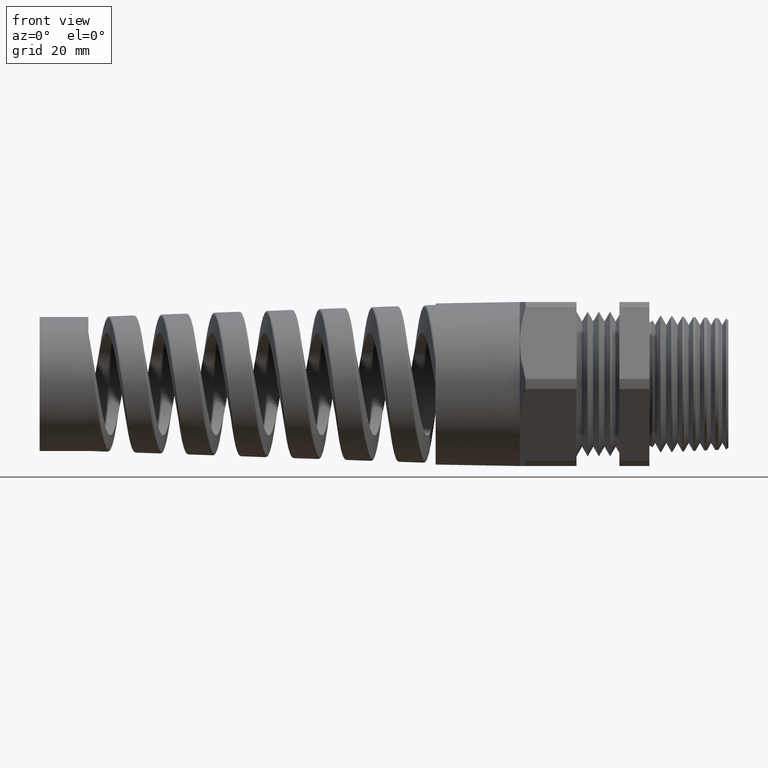
[diagram: clean part render]
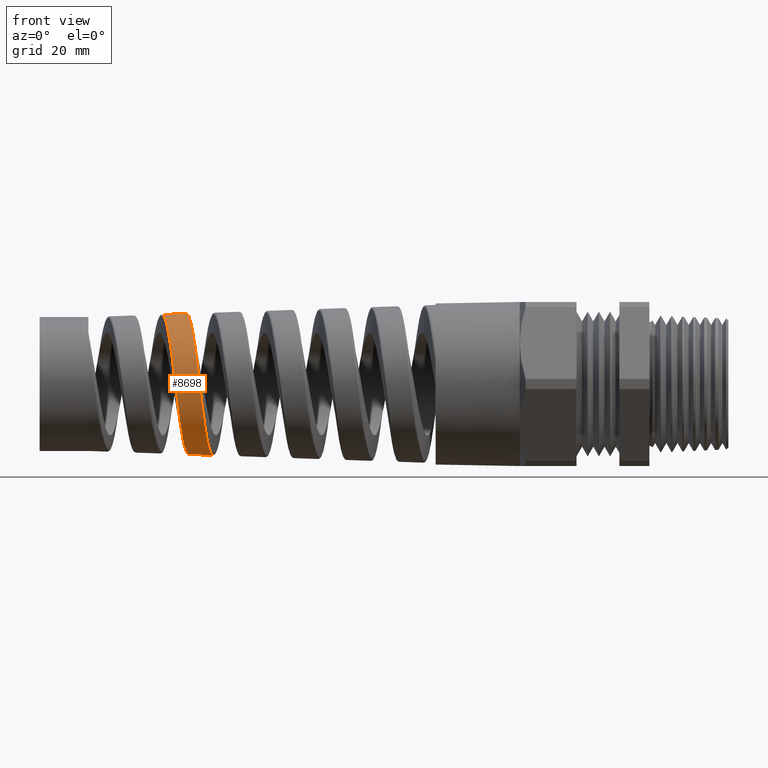
[diagram: same view with one face highlighted and labeled with its STEP entity id]
A machine part, front view. The second image highlights one B-rep face of the part: STEP entity #8698.
In plain terms, the highlighted conical surface has half-angle 2.001 deg.
Its self-contained STEP definition (entity closure, byte-faithful):
#520 = VERTEX_POINT ( 'NONE', #10464 ) ;
#522 = VERTEX_POINT ( 'NONE', #10463 ) ;
#8163 = VERTEX_POINT ( 'NONE', #10644 ) ;
#8172 = EDGE_CURVE ( 'NONE', #520, #8163, #10738, .T. ) ;
#8176 = VERTEX_POINT ( 'NONE', #10795 ) ;
#8182 = EDGE_CURVE ( 'NONE', #522, #8176, #10788, .T. ) ;
#8692 = ORIENTED_EDGE ( 'NONE', *, *, #8182, .T. ) ;
#8693 = ORIENTED_EDGE ( 'NONE', *, *, #8695, .T. ) ;
#8695 = EDGE_CURVE ( 'NONE', #8176, #8163, #11913, .T. ) ;
#8696 = EDGE_CURVE ( 'NONE', #520, #522, #11940, .T. ) ;
#8698 = ADVANCED_FACE ( 'NONE', ( #12071 ), #12095, .T. ) ;
#8706 = EDGE_LOOP ( 'NONE', ( #9845, #9846, #8692, #8693 ) ) ;
#9845 = ORIENTED_EDGE ( 'NONE', *, *, #8172, .F. ) ;
#9846 = ORIENTED_EDGE ( 'NONE', *, *, #8696, .T. ) ;
#10463 = CARTESIAN_POINT ( 'NONE',  ( -2.977747145506433500, -9.795493276381082000E-015, -0.4552381096315953900 ) ) ;
#10464 = CARTESIAN_POINT ( 'NONE',  ( -3.147902882401847300, -5.579879108789394900E-013, 0.4492943266558587200 ) ) ;
#10644 = CARTESIAN_POINT ( 'NONE',  ( -2.991524237846453300, -1.001612489709090300E-015, 0.4547568561140834000 ) ) ;
#10730 = DIRECTION ( 'NONE',  ( 0.9993904554178625300, 4.275258673359080400E-018, 0.03491013634572581700 ) ) ;
#10731 = VECTOR ( 'NONE', #10730, 39.37007874015748900 ) ;
#10732 = CARTESIAN_POINT ( 'NONE',  ( -0.8375000000000000200, 6.490628035480970000E-017, 0.5299999999999999200 ) ) ;
#10738 = LINE ( 'NONE', #10732, #10731 ) ;
#10777 = CARTESIAN_POINT ( 'NONE',  ( -2.977747145506433500, -9.795493276381082000E-015, -0.4552381096315953900 ) ) ;
#10779 = CARTESIAN_POINT ( 'NONE',  ( -2.981299327183932800, -0.02985683859742208400, -0.4551140268509217300 ) ) ;
#10780 = CARTESIAN_POINT ( 'NONE',  ( -2.984794998673273800, -0.05922564759960188800, -0.4520825349198475700 ) ) ;
#10781 = DIRECTION ( 'NONE',  ( 0.9993904554178625300, 0.0000000000000000000, -0.03491013634572581700 ) ) ;
#10782 = VECTOR ( 'NONE', #10781, 39.37007874015748900 ) ;
#10783 = CARTESIAN_POINT ( 'NONE',  ( -0.8375000000000000200, 0.0000000000000000000, -0.5299999999999999200 ) ) ;
#10788 = LINE ( 'NONE', #10783, #10782 ) ;
#10795 = CARTESIAN_POINT ( 'NONE',  ( -2.821329196497246000, 6.736195966001059800E-015, -0.4607020120505417300 ) ) ;
#11903 = CARTESIAN_POINT ( 'NONE',  ( -2.849572575431412500, -0.2290696585563506400, -0.3988647018417353900 ) ) ;
#11904 = CARTESIAN_POINT ( 'NONE',  ( -2.846015733641902300, -0.2024794265312987700, -0.4131371337967252300 ) ) ;
#11905 = CARTESIAN_POINT ( 'NONE',  ( -2.844238566751071200, -0.1888389701823234000, -0.4196109694246528100 ) ) ;
#11906 = CARTESIAN_POINT ( 'NONE',  ( -2.838951848512202100, -0.1473964834856299200, -0.4368631247428371700 ) ) ;
#11907 = CARTESIAN_POINT ( 'NONE',  ( -2.835459248503994000, -0.1188816958898165500, -0.4455991824247879700 ) ) ;
#11908 = CARTESIAN_POINT ( 'NONE',  ( -2.830163984943636600, -0.07478362472050184600, -0.4545265835666629800 ) ) ;
#11909 = CARTESIAN_POINT ( 'NONE',  ( -2.828379913915487700, -0.05977955789401557400, -0.4568063307307612700 ) ) ;
#11910 = CARTESIAN_POINT ( 'NONE',  ( -2.824840741635346900, -0.02985787195600908200, -0.4598564915929573800 ) ) ;
#11911 = CARTESIAN_POINT ( 'NONE',  ( -2.823083103752442600, -0.01491815748821560500, -0.4606407455644704900 ) ) ;
#11912 = CARTESIAN_POINT ( 'NONE',  ( -2.821329196497246000, 6.736195966001059800E-015, -0.4607020120505417300 ) ) ;
#11913 = B_SPLINE_CURVE_WITH_KNOTS ( 'NONE', 3,
 ( #11912, #11911, #11910, #11909, #11908, #11907, #11906, #11905, #11904, #11903, #11982, #11981, #11980, #11979, #11978, #11977, #11976, #11975, #11974, #11973, #11972, #11971, #11970, #11969, #11968, #11967, #11966, #11965, #11964, #11963, #11962, #11961, #11960, #11959, #11958, #11957, #11956, #11955, #11954, #11953, #11952, #11951, #11950, #11949, #11948, #11947, #11946, #11945 ),
 .UNSPECIFIED., .F., .F.,
 ( 4, 2, 2, 2, 2, 2, 2, 2, 1, 2, 2, 2, 2, 2, 2, 2, 2, 2, 2, 1, 2, 2, 2, 2, 4 ),
 ( 0.3313107034519711100, 0.3324638090343272100, 0.3336169146166833000, 0.3359231257813955500, 0.3370762313637516400, 0.3382293369461077900, 0.3405355481108199900, 0.3416886536931761400, 0.3428417592755322300, 0.3439948648578883300, 0.3451479704402444800, 0.3474541816049567200, 0.3486072871873128200, 0.3497603927696689200, 0.3520666039343811600, 0.3532197095167373100, 0.3543728150990934100, 0.3566790262638056500, 0.3578321318461617500, 0.3589852374285179000, 0.3601383430108740000, 0.3612914485932300900, 0.3635976597579423400, 0.3659038709226545800, 0.3682100820873668300 ),
 .UNSPECIFIED. ) ;
#11940 = B_SPLINE_CURVE_WITH_KNOTS ( 'NONE', 3,
 ( #12031, #12030, #12029, #12028, #12027, #12026, #12025, #12024, #12023, #12022, #12021, #12020, #12019, #12018, #12017, #12016, #12015, #12014, #12013, #12012, #12011, #12010, #12009, #12008, #12007, #12006, #12005, #12004, #12003, #12002, #12001, #12000, #11999, #11998, #11997, #11996, #11995, #11994, #11993, #11992, #11991, #11990, #11989, #11988, #11987, #11986, #11985, #11984, #11983, #10780, #10779, #10777 ),
 .UNSPECIFIED., .F., .F.,
 ( 4, 2, 2, 2, 2, 2, 2, 2, 2, 2, 2, 2, 2, 2, 2, 2, 2, 2, 2, 2, 2, 2, 2, 2, 2, 4 ),
 ( 0.1002673771783825100, 0.1014138024848510900, 0.1025602277913196700, 0.1048530784042568200, 0.1059995037107254000, 0.1071459290171939800, 0.1082923543236625600, 0.1094387796301311300, 0.1117316302430682900, 0.1128780555495368700, 0.1140244808560054400, 0.1163173314689426000, 0.1174637567754111800, 0.1186101820818797500, 0.1209030326948168900, 0.1220494580012854700, 0.1231958833077540500, 0.1243423086142226300, 0.1254887339206912100, 0.1277815845336283700, 0.1289280098400969500, 0.1300744351465655000, 0.1323672857595026800, 0.1335137110659712600, 0.1346601363724398400, 0.1369529869853770000 ),
 .UNSPECIFIED. ) ;
#11945 = CARTESIAN_POINT ( 'NONE',  ( -2.991524237846453300, -1.001612489709090300E-015, 0.4547568561140834000 ) ) ;
#11946 = CARTESIAN_POINT ( 'NONE',  ( -2.987946238257993800, -0.03003703471290229300, 0.4548818407512696900 ) ) ;
#11947 = CARTESIAN_POINT ( 'NONE',  ( -2.984409720777710700, -0.05972992041595653200, 0.4520577870524141200 ) ) ;
#11948 = CARTESIAN_POINT ( 'NONE',  ( -2.977291943038396800, -0.1184222112807947100, 0.4405977844557645300 ) ) ;
#11949 = CARTESIAN_POINT ( 'NONE',  ( -2.973683148434042700, -0.1476242285718863100, 0.4318229258425798100 ) ) ;
#11950 = CARTESIAN_POINT ( 'NONE',  ( -2.966574842881935000, -0.2028835404759482800, 0.4090579757474829300 ) ) ;
#11951 = CARTESIAN_POINT ( 'NONE',  ( -2.963043335854675100, -0.2292271057332599100, 0.3950553264028793800 ) ) ;
#11952 = CARTESIAN_POINT ( 'NONE',  ( -2.957684441031275500, -0.2667682841207255100, 0.3700554316212163500 ) ) ;
#11953 = CARTESIAN_POINT ( 'NONE',  ( -2.955883918045678600, -0.2789681893126114100, 0.3610254195748557300 ) ) ;
#11954 = CARTESIAN_POINT ( 'NONE',  ( -2.952321485984758600, -0.3021673803066681800, 0.3420102110941721800 ) ) ;
#11955 = CARTESIAN_POINT ( 'NONE',  ( -2.948778251765745500, -0.3243065482071598700, 0.3219552434602923100 ) ) ;
#11956 = CARTESIAN_POINT ( 'NONE',  ( -2.945238893840155500, -0.3443607528575971500, 0.2998608238787552300 ) ) ;
#11957 = CARTESIAN_POINT ( 'NONE',  ( -2.941686010439970000, -0.3633601943242205100, 0.2767372490114608500 ) ) ;
#11958 = CARTESIAN_POINT ( 'NONE',  ( -2.939895959228357600, -0.3723661000523224600, 0.2646098214722820100 ) ) ;
#11959 = CARTESIAN_POINT ( 'NONE',  ( -2.934528213273993800, -0.3975042274558647800, 0.2269783678739829000 ) ) ;
#11960 = CARTESIAN_POINT ( 'NONE',  ( -2.931004493022999000, -0.4115485567170416600, 0.2006227025091270900 ) ) ;
#11961 = CARTESIAN_POINT ( 'NONE',  ( -2.925696331080185300, -0.4286715110074804100, 0.1592604187080516300 ) ) ;
#11962 = CARTESIAN_POINT ( 'NONE',  ( -2.923923445356856100, -0.4337171935460254500, 0.1451659694804421400 ) ) ;
#11963 = CARTESIAN_POINT ( 'NONE',  ( -2.920355302298300000, -0.4424486347720021900, 0.1163483327728503800 ) ) ;
#11964 = CARTESIAN_POINT ( 'NONE',  ( -2.918562429449240700, -0.4461182919886564300, 0.1016429193666849700 ) ) ;
#11965 = CARTESIAN_POINT ( 'NONE',  ( -2.913239860671364800, -0.4548453780368180200, 0.05755009904334179600 ) ) ;
#11966 = CARTESIAN_POINT ( 'NONE',  ( -2.909726159735071900, -0.4577457256428204600, 0.02787129539426402800 ) ) ;
#11967 = CARTESIAN_POINT ( 'NONE',  ( -2.904406956306153200, -0.4577271077501346400, -0.01705955274098234000 ) ) ;
#11968 = CARTESIAN_POINT ( 'NONE',  ( -2.902616783848142900, -0.4569783027041096600, -0.03218469703068927600 ) ) ;
#11969 = CARTESIAN_POINT ( 'NONE',  ( -2.899052936530148300, -0.4539982647349198300, -0.06216601841737445100 ) ) ;
#11970 = CARTESIAN_POINT ( 'NONE',  ( -2.897284299923778200, -0.4517808601569215400, -0.07697731812642939800 ) ) ;
#11971 = CARTESIAN_POINT ( 'NONE',  ( -2.891990556881263200, -0.4430078726761442800, -0.1208850171621956600 ) ) ;
#11972 = CARTESIAN_POINT ( 'NONE',  ( -2.888477333253096600, -0.4343514573231577200, -0.1494601434140669400 ) ) ;
#11973 = CARTESIAN_POINT ( 'NONE',  ( -2.883132479500474200, -0.4170346864900357800, -0.1912357265552261100 ) ) ;
#11974 = CARTESIAN_POINT ( 'NONE',  ( -2.881347608320910000, -0.4105564736076739400, -0.2049060984432466100 ) ) ;
#11975 = CARTESIAN_POINT ( 'NONE',  ( -2.877811860895643600, -0.3964268590086838500, -0.2313053640827051600 ) ) ;
#11976 = CARTESIAN_POINT ( 'NONE',  ( -2.874292786678526800, -0.3810703100044597900, -0.2568975044712328800 ) ) ;
#11977 = CARTESIAN_POINT ( 'NONE',  ( -2.870771814179919400, -0.3632933354164753500, -0.2808924499855928200 ) ) ;
#11978 = CARTESIAN_POINT ( 'NONE',  ( -2.867233270716751800, -0.3442885416449117900, -0.3040748194777972400 ) ) ;
#11979 = CARTESIAN_POINT ( 'NONE',  ( -2.865445282883972500, -0.3341109121628729200, -0.3153175730369041600 ) ) ;
#11980 = CARTESIAN_POINT ( 'NONE',  ( -2.860118631851395100, -0.3021960276441475500, -0.3472508587105208600 ) ) ;
#11981 = CARTESIAN_POINT ( 'NONE',  ( -2.856618403220923900, -0.2791283581159823600, -0.3661850367291651400 ) ) ;
#11982 = CARTESIAN_POINT ( 'NONE',  ( -2.851337695236016800, -0.2419133186765139200, -0.3911298446615042400 ) ) ;
#11983 = CARTESIAN_POINT ( 'NONE',  ( -2.990059313946858300, -0.1025618861203484700, -0.4433379798784030700 ) ) ;
#11984 = CARTESIAN_POINT ( 'NONE',  ( -2.991817347765781700, -0.1168869767036086700, -0.4397185733495976900 ) ) ;
#11985 = CARTESIAN_POINT ( 'NONE',  ( -2.995356104338270200, -0.1452889808735698700, -0.4310379222913687800 ) ) ;
#11986 = CARTESIAN_POINT ( 'NONE',  ( -2.997141312940652100, -0.1593997302517566900, -0.4259540248932588400 ) ) ;
#11987 = CARTESIAN_POINT ( 'NONE',  ( -3.002439977598507800, -0.2004479518044029500, -0.4088479775026853100 ) ) ;
#11988 = CARTESIAN_POINT ( 'NONE',  ( -3.005934582102719200, -0.2264107885494472700, -0.3949151236745777600 ) ) ;
#11989 = CARTESIAN_POINT ( 'NONE',  ( -3.011222916600616800, -0.2632575932932131900, -0.3702597272631016300 ) ) ;
#11990 = CARTESIAN_POINT ( 'NONE',  ( -3.012998479441015000, -0.2752213084774060600, -0.3613832274398160500 ) ) ;
#11991 = CARTESIAN_POINT ( 'NONE',  ( -3.016558816773736500, -0.2982698947752062100, -0.3424423506739861500 ) ) ;
#11992 = CARTESIAN_POINT ( 'NONE',  ( -3.018324955089327900, -0.3092387425326501600, -0.3324791306097386000 ) ) ;
#11993 = CARTESIAN_POINT ( 'NONE',  ( -3.023608214662683500, -0.3405287446783084000, -0.3011594125048671600 ) ) ;
#11994 = CARTESIAN_POINT ( 'NONE',  ( -3.027110633715162100, -0.3592481972434489700, -0.2783860342666308300 ) ) ;
#11995 = CARTESIAN_POINT ( 'NONE',  ( -3.032437506558684600, -0.3840381390274462100, -0.2413328327867684300 ) ) ;
#11996 = CARTESIAN_POINT ( 'NONE',  ( -3.034227176520870400, -0.3917483249063855000, -0.2284775829708728700 ) ) ;
#11997 = CARTESIAN_POINT ( 'NONE',  ( -3.037768210385124700, -0.4057214447999879000, -0.2023530299243293000 ) ) ;
#11998 = CARTESIAN_POINT ( 'NONE',  ( -3.039529290847973600, -0.4120329019923391600, -0.1890167307603890800 ) ) ;
#11999 = CARTESIAN_POINT ( 'NONE',  ( -3.043050672692836600, -0.4233267029757317700, -0.1618069546896329900 ) ) ;
#12000 = CARTESIAN_POINT ( 'NONE',  ( -3.044810918871294200, -0.4283090368701251700, -0.1479334666307430800 ) ) ;
#12001 = CARTESIAN_POINT ( 'NONE',  ( -3.048347890380219900, -0.4369280814297221100, -0.1196448775980700800 ) ) ;
#12002 = CARTESIAN_POINT ( 'NONE',  ( -3.050132237715318600, -0.4405767658900977500, -0.1051670328331710500 ) ) ;
#12003 = CARTESIAN_POINT ( 'NONE',  ( -3.055482454094735200, -0.4493363221157525300, -0.06133289325534165700 ) ) ;
#12004 = CARTESIAN_POINT ( 'NONE',  ( -3.058996703416043200, -0.4522310287743260300, -0.03197230995882577300 ) ) ;
#12005 = CARTESIAN_POINT ( 'NONE',  ( -3.064292149649368500, -0.4522891781348004600, 0.01225694200223072900 ) ) ;
#12006 = CARTESIAN_POINT ( 'NONE',  ( -3.066061446393358600, -0.4515894841949443200, 0.02703163314062937900 ) ) ;
#12007 = CARTESIAN_POINT ( 'NONE',  ( -3.069626085426138600, -0.4487122207480154800, 0.05664386574031397100 ) ) ;
#12008 = CARTESIAN_POINT ( 'NONE',  ( -3.071418495342236500, -0.4465271859593807300, 0.07145514966827981600 ) ) ;
#12009 = CARTESIAN_POINT ( 'NONE',  ( -3.076741815229390800, -0.4378970459210350700, 0.1150117275801618000 ) ) ;
#12010 = CARTESIAN_POINT ( 'NONE',  ( -3.080255885684601400, -0.4293721426173180400, 0.1432123058934939300 ) ) ;
#12011 = CARTESIAN_POINT ( 'NONE',  ( -3.085579959824849000, -0.4124306828682591800, 0.1842451636252487000 ) ) ;
#12012 = CARTESIAN_POINT ( 'NONE',  ( -3.087373114776459800, -0.4060474407242382100, 0.1977795219522876000 ) ) ;
#12013 = CARTESIAN_POINT ( 'NONE',  ( -3.090945184878542300, -0.3920302053267449300, 0.2240333586546084700 ) ) ;
#12014 = CARTESIAN_POINT ( 'NONE',  ( -3.092719393442894000, -0.3844233805853180500, 0.2367220202706911700 ) ) ;
#12015 = CARTESIAN_POINT ( 'NONE',  ( -3.098030503656512600, -0.3598579967692728300, 0.2735062123787458900 ) ) ;
#12016 = CARTESIAN_POINT ( 'NONE',  ( -3.101554331883611400, -0.3411709796380257300, 0.2963322848658405700 ) ) ;
#12017 = CARTESIAN_POINT ( 'NONE',  ( -3.106923385193176600, -0.3095720839090595500, 0.3279341002238468900 ) ) ;
#12018 = CARTESIAN_POINT ( 'NONE',  ( -3.108716463721635100, -0.2984976994110902800, 0.3379572026744869200 ) ) ;
#12019 = CARTESIAN_POINT ( 'NONE',  ( -3.112272235992416600, -0.2756222857071328700, 0.3567020694037920700 ) ) ;
#12020 = CARTESIAN_POINT ( 'NONE',  ( -3.114042992633597100, -0.2637739418502429400, 0.3654721429672813700 ) ) ;
#12021 = CARTESIAN_POINT ( 'NONE',  ( -3.117585387349502700, -0.2392666883263835400, 0.3818200649027272400 ) ) ;
#12022 = CARTESIAN_POINT ( 'NONE',  ( -3.119357211688450300, -0.2266078015450781700, 0.3893979069072739900 ) ) ;
#12023 = CARTESIAN_POINT ( 'NONE',  ( -3.122920322587388100, -0.2004672181888595400, 0.4033393669039934100 ) ) ;
#12024 = CARTESIAN_POINT ( 'NONE',  ( -3.124721580272550500, -0.1869075284921772900, 0.4097316612456853300 ) ) ;
#12025 = CARTESIAN_POINT ( 'NONE',  ( -3.130086443300476300, -0.1456921150320278100, 0.4267105807159474700 ) ) ;
#12026 = CARTESIAN_POINT ( 'NONE',  ( -3.133620043071237800, -0.1174605741298580900, 0.4351875875280403800 ) ) ;
#12027 = CARTESIAN_POINT ( 'NONE',  ( -3.138952193676288500, -0.07401419354144328500, 0.4437185554342923400 ) ) ;
#12028 = CARTESIAN_POINT ( 'NONE',  ( -3.140735103711065800, -0.05934761732075573300, 0.4458598539940710800 ) ) ;
#12029 = CARTESIAN_POINT ( 'NONE',  ( -3.144330940891673100, -0.02963514279620317600, 0.4486891915276846600 ) ) ;
#12030 = CARTESIAN_POINT ( 'NONE',  ( -3.146121773365753600, -0.01477254076599465900, 0.4493565433389790600 ) ) ;
#12031 = CARTESIAN_POINT ( 'NONE',  ( -3.147902882401847300, -5.579879108789394900E-013, 0.4492943266558587200 ) ) ;
#12071 = FACE_OUTER_BOUND ( 'NONE', #8706, .T. ) ;
#12091 = DIRECTION ( 'NONE',  ( 0.0000000000000000000, 0.0000000000000000000, -1.000000000000000000 ) ) ;
#12092 = DIRECTION ( 'NONE',  ( 1.000000000000000000, 0.0000000000000000000, 0.0000000000000000000 ) ) ;
#12093 = CARTESIAN_POINT ( 'NONE',  ( -0.8375000000000000200, 0.0000000000000000000, 0.0000000000000000000 ) ) ;
#12094 = AXIS2_PLACEMENT_3D ( 'NONE', #12093, #12092, #12091 ) ;
#12095 = CONICAL_SURFACE ( 'NONE', #12094, 0.5299999999999999200, 0.03491723117042447300 ) ;